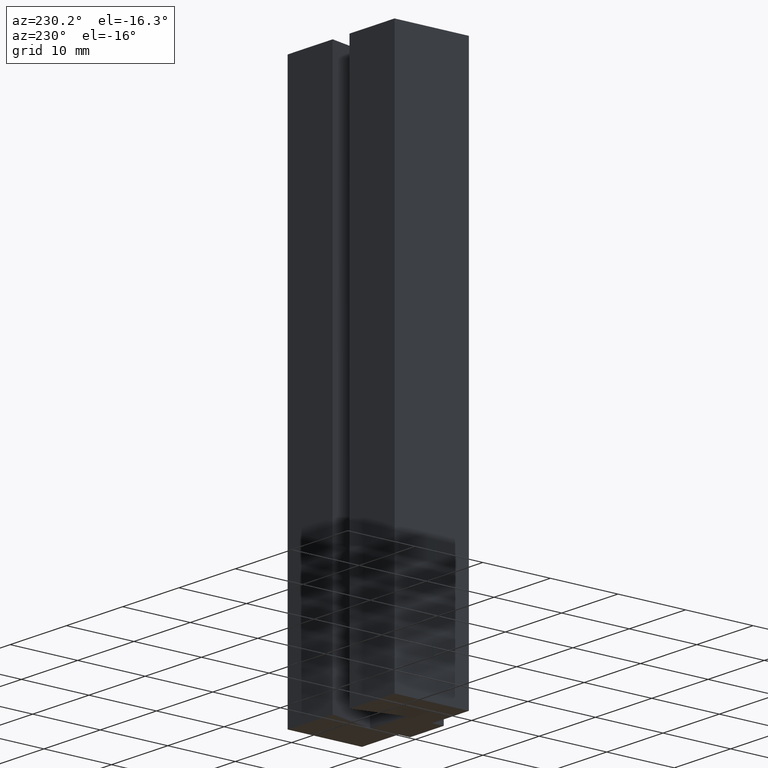
[diagram: clean part render]
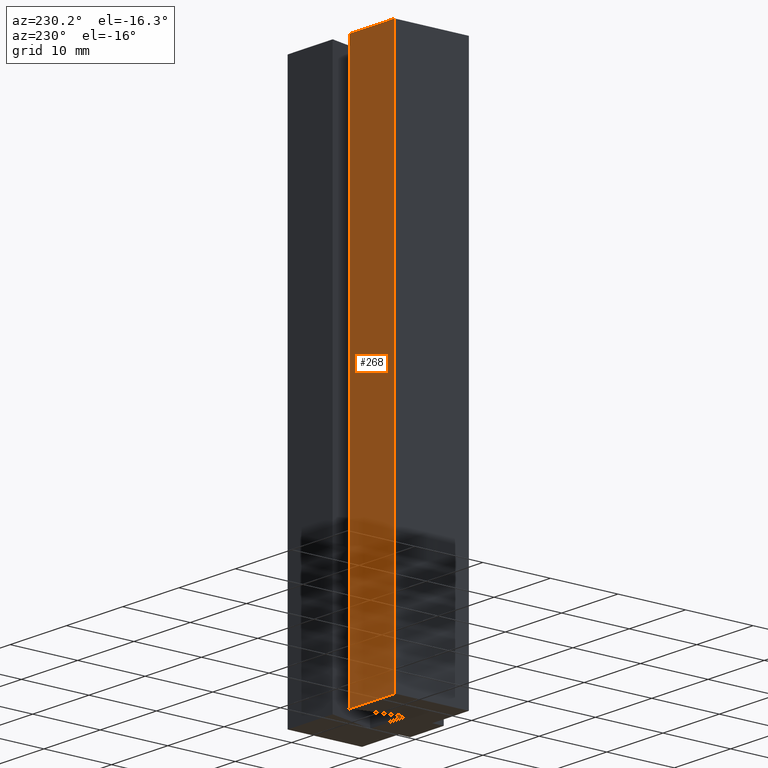
[diagram: same view with one face highlighted and labeled with its STEP entity id]
A machine part, auxiliary view. The second image highlights one B-rep face of the part: STEP entity #268.
In plain terms, the highlighted planar face has unit normal (-0, 1, 0).
Its self-contained STEP definition (entity closure, byte-faithful):
#22=FACE_OUTER_BOUND('',#36,.T.);
#36=EDGE_LOOP('',(#208,#209,#210,#211));
#51=LINE('',#397,#87);
#66=LINE('',#426,#102);
#67=LINE('',#429,#103);
#68=LINE('',#430,#104);
#87=VECTOR('',#324,10.);
#102=VECTOR('',#349,10.);
#103=VECTOR('',#352,10.);
#104=VECTOR('',#353,10.);
#123=VERTEX_POINT('',#394);
#124=VERTEX_POINT('',#396);
#133=VERTEX_POINT('',#424);
#134=VERTEX_POINT('',#428);
#147=EDGE_CURVE('',#124,#123,#51,.T.);
#162=EDGE_CURVE('',#133,#123,#66,.T.);
#163=EDGE_CURVE('',#133,#134,#67,.T.);
#164=EDGE_CURVE('',#134,#124,#68,.T.);
#208=ORIENTED_EDGE('',*,*,#163,.T.);
#209=ORIENTED_EDGE('',*,*,#164,.T.);
#210=ORIENTED_EDGE('',*,*,#147,.T.);
#211=ORIENTED_EDGE('',*,*,#162,.F.);
#254=PLANE('',#305);
#268=ADVANCED_FACE('',(#22),#254,.T.);
#305=AXIS2_PLACEMENT_3D('',#427,#350,#351);
#324=DIRECTION('',(-1.,-2.77555756156289E-16,0.));
#349=DIRECTION('',(0.,0.,-1.));
#350=DIRECTION('center_axis',(-2.77555756156289E-16,1.,0.));
#351=DIRECTION('ref_axis',(0.,0.,1.));
#352=DIRECTION('',(1.,2.77555756156289E-16,0.));
#353=DIRECTION('',(0.,0.,-1.));
#394=CARTESIAN_POINT('',(-9.50000000000001,11.,-40.));
#396=CARTESIAN_POINT('',(-1.5,11.,-40.));
#397=CARTESIAN_POINT('',(-9.50000000000001,11.,-40.));
#424=CARTESIAN_POINT('',(-9.50000000000001,11.,40.));
#426=CARTESIAN_POINT('',(-9.50000000000001,11.,0.));
#427=CARTESIAN_POINT('Origin',(-9.50000000000001,11.,0.));
#428=CARTESIAN_POINT('',(-1.5,11.,40.));
#429=CARTESIAN_POINT('',(-9.50000000000001,11.,40.));
#430=CARTESIAN_POINT('',(-1.5,11.,0.));